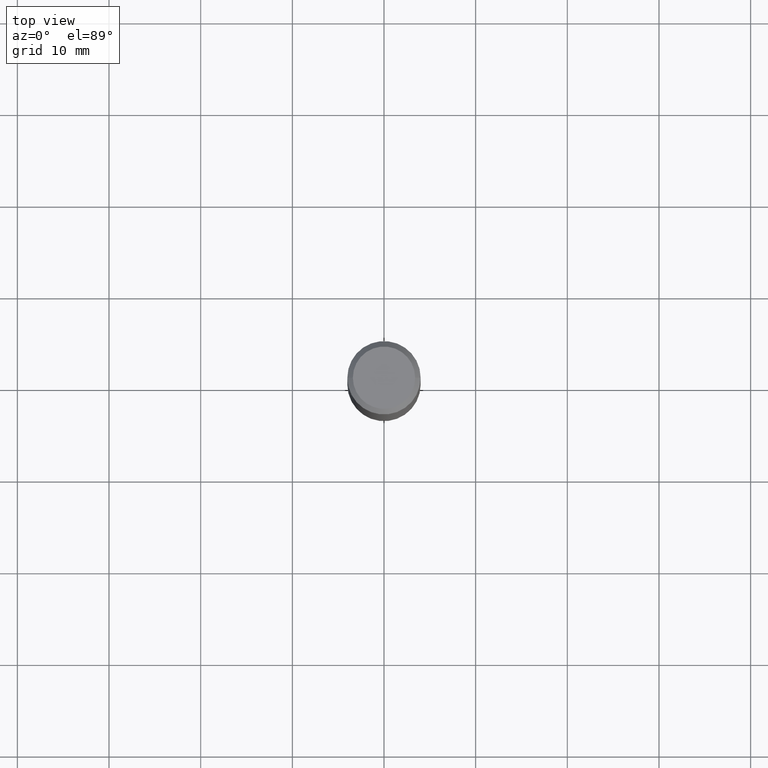
[diagram: clean part render]
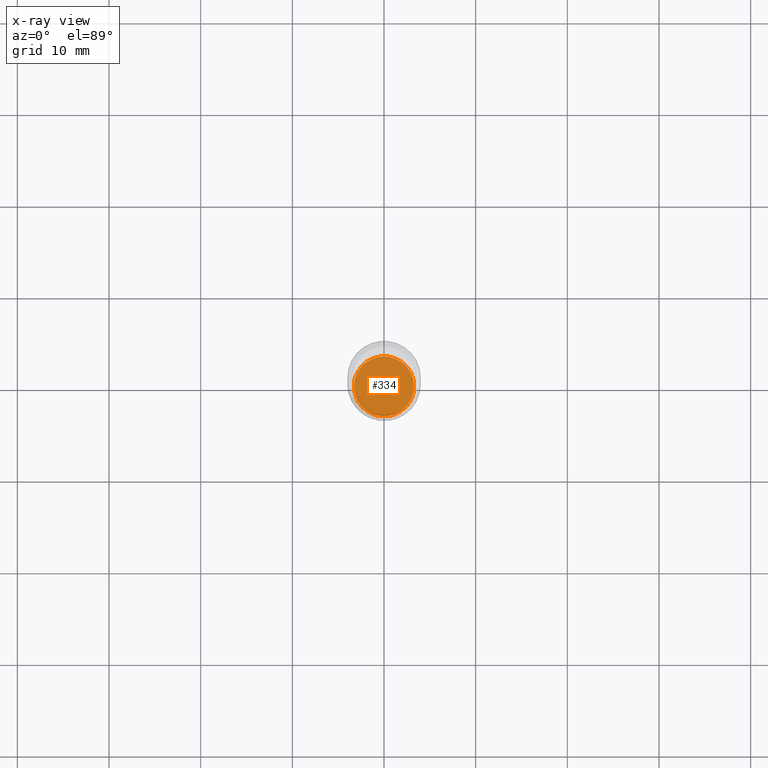
[diagram: x-ray — body ghosted, one internal face saturated and labeled with its STEP entity id]
A machine part, top view, then the same camera in x-ray: the body is ghosted and one INTERNAL B-rep face — a face not visible from any outside direction — is saturated and labeled: STEP entity #334.
In plain terms, the highlighted planar face has unit normal (-0, 0, 1).
Its self-contained STEP definition (entity closure, byte-faithful):
#47 = EDGE_CURVE ( 'NONE', #282, #104, #165, .T. ) ;
#53 = PLANE ( 'NONE',  #350 ) ;
#90 = CARTESIAN_POINT ( 'NONE',  ( 5.295173606032675561E-29, -7.560104542997063911E-15, -2.165299999999999780 ) ) ;
#104 = VERTEX_POINT ( 'NONE', #113 ) ;
#113 = CARTESIAN_POINT ( 'NONE',  ( 0.1293999999999999873, -8.463699913489665713E-15, -2.165299999999999780 ) ) ;
#135 = CARTESIAN_POINT ( 'NONE',  ( 5.295173606032675561E-29, -7.560104542997063911E-15, -2.165299999999999780 ) ) ;
#159 = DIRECTION ( 'NONE',  ( -2.445468806185136597E-29, 3.491481338843145583E-15, 1.000000000000000000 ) ) ;
#165 = CIRCLE ( 'NONE', #454, 0.1293999999999999873 ) ;
#168 = CARTESIAN_POINT ( 'NONE',  ( 5.295173606032675561E-29, -7.560104542997063911E-15, -2.165299999999999780 ) ) ;
#204 = DIRECTION ( 'NONE',  ( 1.000000000000000000, -6.982962677686265922E-15, 4.876176775795935793E-29 ) ) ;
#244 = DIRECTION ( 'NONE',  ( 1.000000000000000000, -6.982962677686265133E-15, 0.000000000000000000 ) ) ;
#282 = VERTEX_POINT ( 'NONE', #286 ) ;
#286 = CARTESIAN_POINT ( 'NONE',  ( -0.1293999999999999873, -6.638013015749382568E-15, -2.165299999999999780 ) ) ;
#317 = EDGE_LOOP ( 'NONE', ( #491, #344 ) ) ;
#320 = DIRECTION ( 'NONE',  ( -2.438088387897960049E-29, 3.491481338843145188E-15, 1.000000000000000000 ) ) ;
#334 = ADVANCED_FACE ( 'NONE', ( #400 ), #53, .F. ) ;
#338 = DIRECTION ( 'NONE',  ( 1.000000000000000000, -6.982962677686265133E-15, 0.000000000000000000 ) ) ;
#344 = ORIENTED_EDGE ( 'NONE', *, *, #47, .F. ) ;
#350 = AXIS2_PLACEMENT_3D ( 'NONE', #168, #320, #204 ) ;
#358 = EDGE_CURVE ( 'NONE', #104, #282, #446, .T. ) ;
#400 = FACE_OUTER_BOUND ( 'NONE', #317, .T. ) ;
#411 = DIRECTION ( 'NONE',  ( -2.445468806185136597E-29, 3.491481338843145583E-15, 1.000000000000000000 ) ) ;
#446 = CIRCLE ( 'NONE', #470, 0.1293999999999999873 ) ;
#454 = AXIS2_PLACEMENT_3D ( 'NONE', #135, #411, #338 ) ;
#470 = AXIS2_PLACEMENT_3D ( 'NONE', #90, #159, #244 ) ;
#491 = ORIENTED_EDGE ( 'NONE', *, *, #358, .F. ) ;